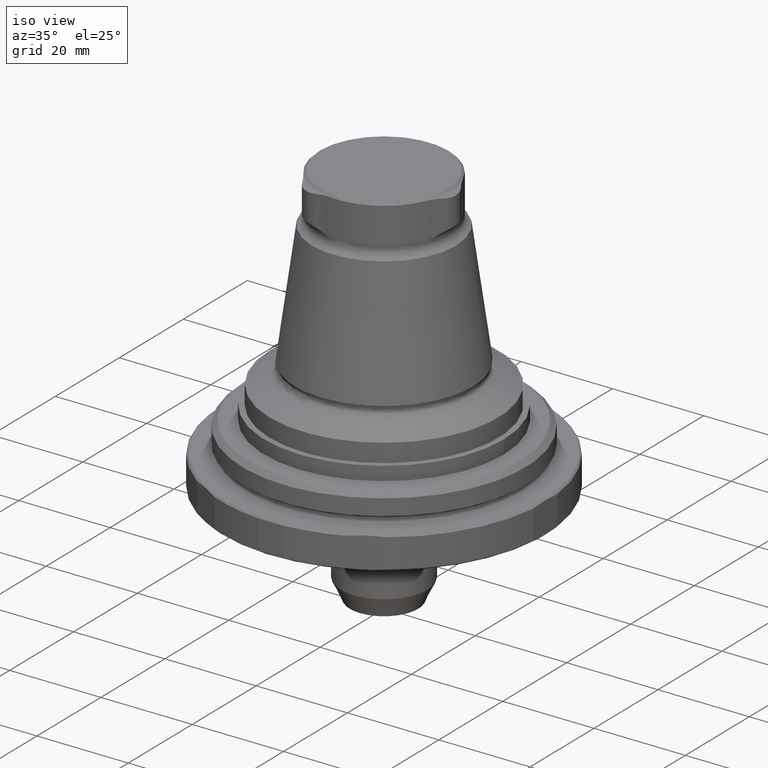
[diagram: clean part render]
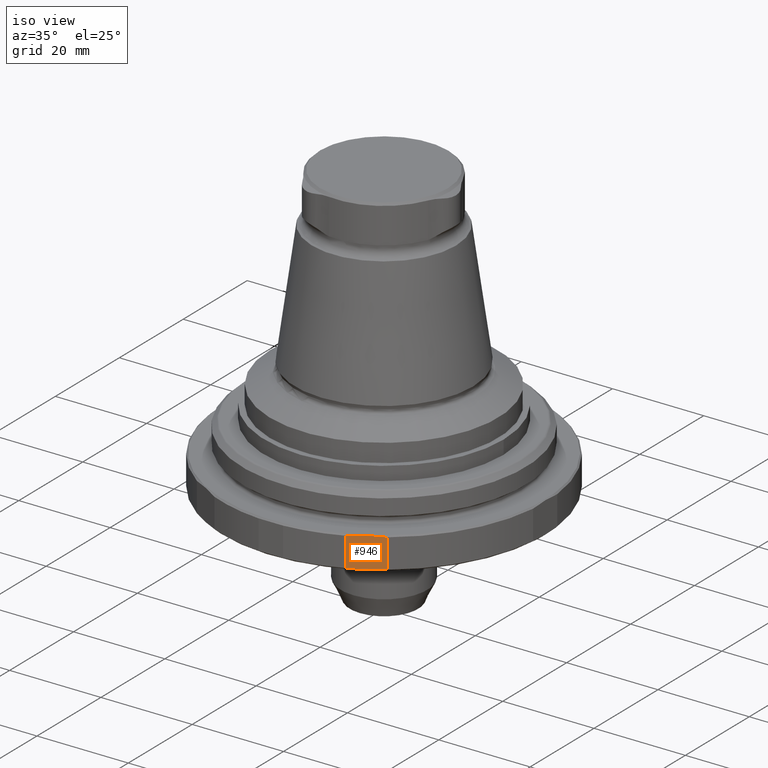
[diagram: same view with one face highlighted and labeled with its STEP entity id]
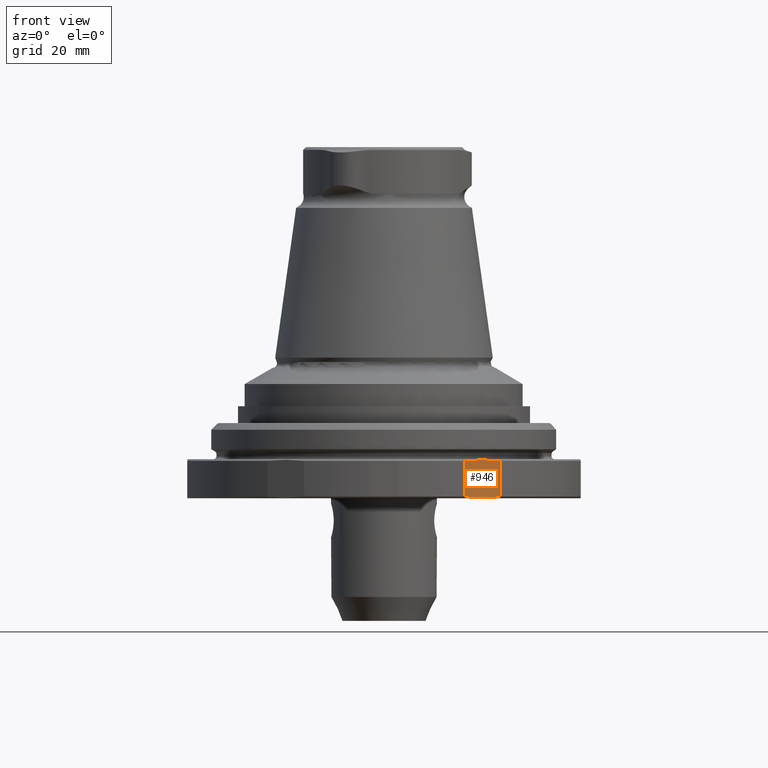
[diagram: same view with one face highlighted and labeled with its STEP entity id]
A machine part, iso view. The second image highlights one B-rep face of the part: STEP entity #946.
A second angle (front view) of the same face is appended — the face is thin or edge-on in the first view.
In plain terms, the highlighted planar face has unit normal (-0.5, 0.866, 0).
Its self-contained STEP definition (entity closure, byte-faithful):
#50=LINE('',#1763,#78);
#52=LINE('',#1767,#80);
#78=VECTOR('',#1306,1000.);
#80=VECTOR('',#1312,1000.);
#107=PLANE('',#1069);
#384=ORIENTED_EDGE('',*,*,#532,.F.);
#385=ORIENTED_EDGE('',*,*,#519,.F.);
#386=ORIENTED_EDGE('',*,*,#530,.F.);
#387=ORIENTED_EDGE('',*,*,#491,.F.);
#491=EDGE_CURVE('',#598,#599,#662,.T.);
#519=EDGE_CURVE('',#622,#623,#676,.T.);
#530=EDGE_CURVE('',#599,#622,#50,.T.);
#532=EDGE_CURVE('',#623,#598,#52,.F.);
#598=VERTEX_POINT('',#1641);
#599=VERTEX_POINT('',#1646);
#622=VERTEX_POINT('',#1737);
#623=VERTEX_POINT('',#1742);
#662=B_SPLINE_CURVE_WITH_KNOTS('',3,(#1642,#1643,#1644,#1645),
 .UNSPECIFIED.,.F.,.F.,(4,4),(0.00301971742095615,0.0105389064051034),
 .UNSPECIFIED.);
#676=B_SPLINE_CURVE_WITH_KNOTS('',3,(#1738,#1739,#1740,#1741),
 .UNSPECIFIED.,.F.,.F.,(4,4),(0.0142564267081391,0.0217467200872314),
 .UNSPECIFIED.);
#744=EDGE_LOOP('',(#384,#385,#386,#387));
#840=FACE_BOUND('',#744,.T.);
#946=ADVANCED_FACE('',(#840),#107,.F.);
#1069=AXIS2_PLACEMENT_3D('',#1768,#1313,#1314);
#1306=DIRECTION('',(-5.47430718319515E-16,-4.76420379815137E-18,-1.));
#1312=DIRECTION('',(-5.47430718319515E-16,-4.76420379815137E-18,-1.));
#1313=DIRECTION('',(-0.500000000000001,0.866025403784439,2.6958941068981E-16));
#1314=DIRECTION('',(-5.47430718319515E-16,-4.76420379815137E-18,-1.));
#1641=CARTESIAN_POINT('',(14.3911658526399,-32.4521855258135,-1.3));
#1642=CARTESIAN_POINT('',(14.3911658526399,-32.4521855258135,-1.30000000000003));
#1643=CARTESIAN_POINT('',(16.5539924560932,-31.2034770040992,-1.03527537313983));
#1644=CARTESIAN_POINT('',(18.7270089611763,-29.948885339936,-1.03294999360356));
#1645=CARTESIAN_POINT('',(20.90883414736,-28.6892079813681,-1.30000000000003));
#1646=CARTESIAN_POINT('',(20.90883414736,-28.6892079813681,-1.3));
#1737=CARTESIAN_POINT('',(20.90883414736,-28.6892079813681,-7.70000000000001));
#1738=CARTESIAN_POINT('',(20.90883414736,-28.6892079813681,-7.69999999999998));
#1739=CARTESIAN_POINT('',(18.7270089611763,-29.948885339936,-7.96705000639644));
#1740=CARTESIAN_POINT('',(16.5539924560932,-31.2034770040992,-7.96472462686017));
#1741=CARTESIAN_POINT('',(14.3911658526399,-32.4521855258135,-7.69999999999997));
#1742=CARTESIAN_POINT('',(14.3911658526399,-32.4521855258135,-7.7));
#1763=CARTESIAN_POINT('',(20.90883414736,-28.6892079813681,-1.));
#1767=CARTESIAN_POINT('',(14.3911658526399,-32.4521855258135,-0.999999999999997));
#1768=CARTESIAN_POINT('',(17.65,-30.5706967535908,-4.49999999999999));